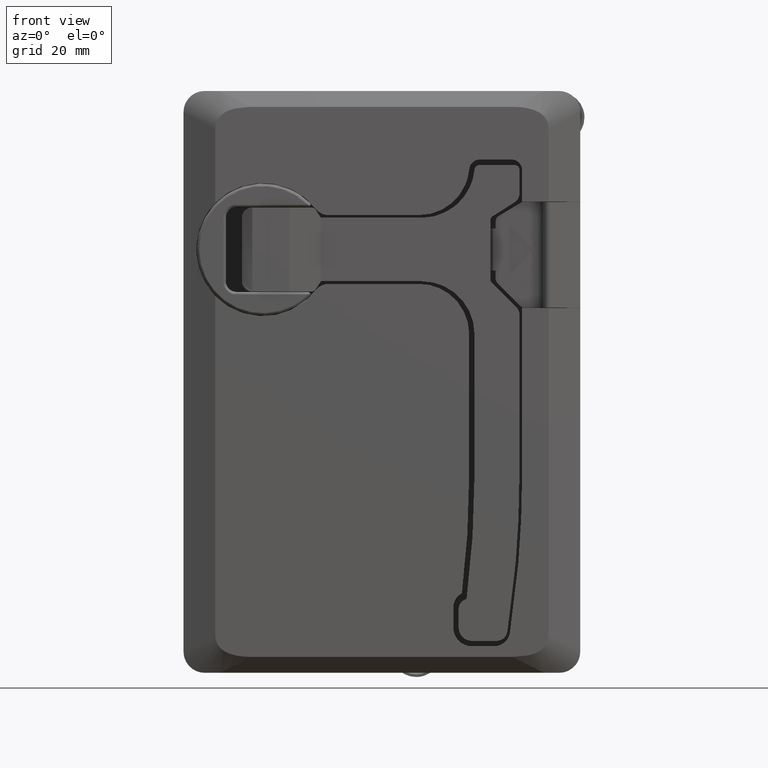
[diagram: clean part render]
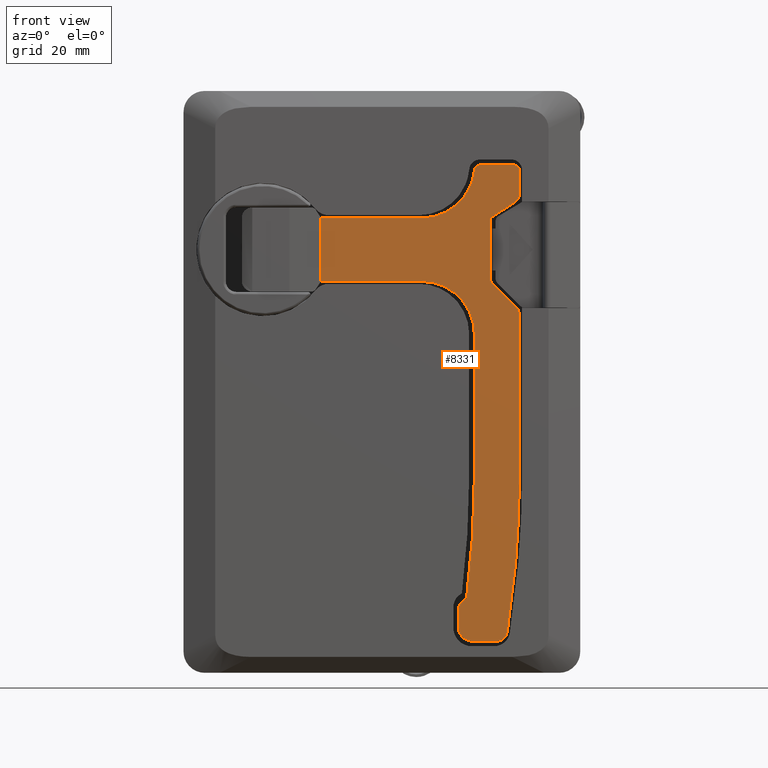
[diagram: same view with one face highlighted and labeled with its STEP entity id]
A machine part, front view. The second image highlights one B-rep face of the part: STEP entity #8331.
In plain terms, the highlighted face is a freeform B-spline surface patch.
Its self-contained STEP definition (entity closure, byte-faithful):
#7204=CARTESIAN_POINT('',(10.965373720073689,-26.800000000000001,-5.999868487807640));
#7205=VERTEX_POINT('',#7204);
#7213=CARTESIAN_POINT('',(10.965373714840711,-26.800000000000001,5.999868497117809));
#7214=VERTEX_POINT('',#7213);
#7215=CARTESIAN_POINT('',(10.965373720073689,-26.800000000000001,-5.999868487807640));
#7216=CARTESIAN_POINT('',(10.965373714840711,-26.800000000000001,5.999868497117809));
#7217=QUASI_UNIFORM_CURVE('',1,(#7215,#7216),.UNSPECIFIED.,.F.,.U.);
#7218=EDGE_CURVE('',#7205,#7214,#7217,.T.);
#7353=CARTESIAN_POINT('',(43.436406167468952,-26.800000000000001,6.277429972350809));
#7354=VERTEX_POINT('',#7353);
#7361=CARTESIAN_POINT('',(47.573445687218900,-26.800000000000001,8.910000000000000));
#7362=VERTEX_POINT('',#7361);
#7368=CARTESIAN_POINT('',(47.573445687218900,-26.800000000000001,8.910000000000000));
#7369=CARTESIAN_POINT('',(43.436406167468952,-26.800000000000001,6.277429972350809));
#7370=QUASI_UNIFORM_CURVE('',1,(#7368,#7369),.UNSPECIFIED.,.F.,.U.);
#7371=EDGE_CURVE('',#7362,#7354,#7370,.T.);
#7391=CARTESIAN_POINT('',(48.499445687218902,-26.800000000000001,10.598000000000001));
#7392=VERTEX_POINT('',#7391);
#7398=CARTESIAN_POINT('',(47.573445687218900,-26.800000000000001,8.910000000000000));
#7399=CARTESIAN_POINT('',(47.732377844695883,-26.800000000000029,9.011038441313067));
#7400=CARTESIAN_POINT('',(47.973093367197087,-26.799999999999979,9.217291413114293));
#7401=CARTESIAN_POINT('',(48.232160425211042,-26.800000000000001,9.574621711014068));
#7402=CARTESIAN_POINT('',(48.437668808919781,-26.800000000000001,10.012178943598469));
#7403=CARTESIAN_POINT('',(48.499730902072493,-26.800000000000050,10.367809887368130));
#7404=CARTESIAN_POINT('',(48.499445687218902,-26.800000000000001,10.598000000000001));
#7405=B_SPLINE_CURVE_WITH_KNOTS('',3,(#7398,#7399,#7400,#7401,#7402,#7403,#7404),.UNSPECIFIED.,.F.,.U.,(4,1,1,1,4),(0.000000042952321,0.564979257355559,0.941632497336676,1.318282900360760,2.008812958736724),.UNSPECIFIED.);
#7406=EDGE_CURVE('',#7362,#7392,#7405,.T.);
#7419=CARTESIAN_POINT('',(48.499445687218902,-26.800000000000001,15.0));
#7420=VERTEX_POINT('',#7419);
#7426=CARTESIAN_POINT('',(48.499445687218902,-26.800000000000001,15.0));
#7427=CARTESIAN_POINT('',(48.499445687218902,-26.800000000000001,10.598000000000001));
#7428=QUASI_UNIFORM_CURVE('',1,(#7426,#7427),.UNSPECIFIED.,.F.,.U.);
#7429=EDGE_CURVE('',#7420,#7392,#7428,.T.);
#7449=CARTESIAN_POINT('',(47.499445687218902,-26.800000000000001,16.0));
#7450=VERTEX_POINT('',#7449);
#7456=CARTESIAN_POINT('',(48.499445687218902,-26.800000000000001,15.0));
#7457=CARTESIAN_POINT('',(48.499489558630017,-26.800000000000018,15.106354320997029));
#7458=CARTESIAN_POINT('',(48.462600496014197,-26.800000000000001,15.335438634151149));
#7459=CARTESIAN_POINT('',(48.318209638793661,-26.800000000000011,15.597830014762160));
#7460=CARTESIAN_POINT('',(48.108880207313170,-26.800000000000090,15.807090875649971));
#7461=CARTESIAN_POINT('',(47.851181436236402,-26.799999999999731,15.957295349612890));
#7462=CARTESIAN_POINT('',(47.622179821844732,-26.800000000000129,16.000102069115290));
#7463=CARTESIAN_POINT('',(47.499445687218902,-26.800000000000001,16.0));
#7464=B_SPLINE_CURVE_WITH_KNOTS('',3,(#7456,#7457,#7458,#7459,#7460,#7461,#7462,#7463),.UNSPECIFIED.,.F.,.U.,(4,1,1,1,1,4),(0.000000316500850,0.319072849687816,0.687261406106283,0.883574654792372,1.202671760962569,1.570835744397910),.UNSPECIFIED.);
#7465=EDGE_CURVE('',#7420,#7450,#7464,.T.);
#7478=CARTESIAN_POINT('',(40.999445687218902,-26.800000000000001,16.0));
#7479=VERTEX_POINT('',#7478);
#7485=CARTESIAN_POINT('',(40.999445687218902,-26.800000000000001,16.0));
#7486=CARTESIAN_POINT('',(47.499445687218902,-26.800000000000001,16.0));
#7487=QUASI_UNIFORM_CURVE('',1,(#7485,#7486),.UNSPECIFIED.,.F.,.U.);
#7488=EDGE_CURVE('',#7479,#7450,#7487,.T.);
#7508=CARTESIAN_POINT('',(40.003811413995500,-26.800000000000001,15.090901939784350));
#7509=VERTEX_POINT('',#7508);
#7515=CARTESIAN_POINT('',(40.999445687218902,-26.800000000000001,16.0));
#7516=CARTESIAN_POINT('',(40.891564964375398,-26.800000000000001,16.000025246011688));
#7517=CARTESIAN_POINT('',(40.660399190246459,-26.800000000000011,15.962179321857450));
#7518=CARTESIAN_POINT('',(40.345460791623218,-26.799999999999979,15.786643994150580));
#7519=CARTESIAN_POINT('',(40.095397929531330,-26.800000000000029,15.484773215997000));
#7520=CARTESIAN_POINT('',(40.016260811641637,-26.800000000000040,15.229081054061650));
#7521=CARTESIAN_POINT('',(40.003811413995500,-26.800000000000001,15.090901939784350));
#7522=B_SPLINE_CURVE_WITH_KNOTS('',3,(#7515,#7516,#7517,#7518,#7519,#7520,#7521),.UNSPECIFIED.,.F.,.U.,(4,1,1,1,4),(0.000000167832963,0.323677993759414,0.693599270851050,1.063513667466645,1.479671515247317),.UNSPECIFIED.);
#7523=EDGE_CURVE('',#7479,#7509,#7522,.T.);
#7545=CARTESIAN_POINT('',(30.045445687218901,-26.800000000000001,6.0));
#7546=VERTEX_POINT('',#7545);
#7552=CARTESIAN_POINT('',(30.045445687218901,-26.800000000000001,6.0));
#7553=CARTESIAN_POINT('',(30.584932270362771,-26.800000000000001,5.999983565211604));
#7554=CARTESIAN_POINT('',(31.740975809580981,-26.800000000000001,6.093775932016242));
#7555=CARTESIAN_POINT('',(33.351525612500133,-26.800000000000001,6.512487654711298));
#7556=CARTESIAN_POINT('',(34.832193058267109,-26.800000000000029,7.177269713426016));
#7557=CARTESIAN_POINT('',(36.229160063548022,-26.800000000000072,8.077097378582858));
#7558=CARTESIAN_POINT('',(37.395430696032292,-26.800000000000050,9.154194123126482));
#7559=CARTESIAN_POINT('',(38.370112101268923,-26.799999999999891,10.401705399327611));
#7560=CARTESIAN_POINT('',(39.144336415849807,-26.800000000000072,11.739604148541780));
#7561=CARTESIAN_POINT('',(39.739257143256253,-26.800000000000090,13.335090297472471));
#7562=CARTESIAN_POINT('',(39.951302421593709,-26.799999999999759,14.515269493797110));
#7563=CARTESIAN_POINT('',(40.003811413995500,-26.800000000000001,15.090901939784350));
#7564=B_SPLINE_CURVE_WITH_KNOTS('',3,(#7552,#7553,#7554,#7555,#7556,#7557,#7558,#7559,#7560,#7561,#7562,#7563),.UNSPECIFIED.,.F.,.U.,(4,1,1,1,1,1,1,1,1,4),(0.000000084956174,1.618469351953996,3.468152886151042,4.971023064562264,6.473925240831878,8.439149809512614,9.710831910965634,11.213703075194729,13.063390707055911,14.797461801784200),.UNSPECIFIED.);
#7565=EDGE_CURVE('',#7546,#7509,#7564,.T.);
#7583=CARTESIAN_POINT('',(10.965373714840711,-26.800000000000001,5.999868497117809));
#7584=CARTESIAN_POINT('',(30.045445687218901,-26.800000000000001,6.0));
#7585=QUASI_UNIFORM_CURVE('',1,(#7583,#7584),.UNSPECIFIED.,.F.,.U.);
#7586=EDGE_CURVE('',#7214,#7546,#7585,.T.);
#7809=CARTESIAN_POINT('',(29.999445687218898,-26.800000000000001,-6.000000000000091));
#7810=VERTEX_POINT('',#7809);
#7816=CARTESIAN_POINT('',(29.999445687218898,-26.800000000000001,-6.000000000000091));
#7817=CARTESIAN_POINT('',(10.965373720073689,-26.800000000000001,-5.999868487807640));
#7818=QUASI_UNIFORM_CURVE('',1,(#7816,#7817),.UNSPECIFIED.,.F.,.U.);
#7819=EDGE_CURVE('',#7810,#7205,#7818,.T.);
#7841=CARTESIAN_POINT('',(39.999445687218902,-26.800000000000001,-16.0));
#7842=VERTEX_POINT('',#7841);
#7848=CARTESIAN_POINT('',(39.999445687218902,-26.800000000000001,-16.0));
#7849=CARTESIAN_POINT('',(39.999512515463891,-26.799999999999969,-15.345507040125931));
#7850=CARTESIAN_POINT('',(39.870513430284099,-26.800000000000029,-14.036526574600829));
#7851=CARTESIAN_POINT('',(39.357440547532462,-26.800000000000011,-12.345187794964991));
#7852=CARTESIAN_POINT('',(38.592641459543337,-26.800000000000001,-10.802334082464640));
#7853=CARTESIAN_POINT('',(37.709854339148343,-26.800000000000018,-9.565055828105596));
#7854=CARTESIAN_POINT('',(36.470914841968927,-26.799999999999990,-8.310790882998772));
#7855=CARTESIAN_POINT('',(35.165218392189587,-26.799999999999979,-7.379140172105198));
#7856=CARTESIAN_POINT('',(33.649998488316577,-26.800000000000018,-6.651181201039023));
#7857=CARTESIAN_POINT('',(32.003791724986783,-26.800000000000011,-6.140705438206801));
#7858=CARTESIAN_POINT('',(30.735760065080321,-26.799999999999962,-5.999872496510283));
#7859=CARTESIAN_POINT('',(29.999445687218898,-26.800000000000001,-6.000000000000091));
#7860=B_SPLINE_CURVE_WITH_KNOTS('',3,(#7848,#7849,#7850,#7851,#7852,#7853,#7854,#7855,#7856,#7857,#7858,#7859),.UNSPECIFIED.,.F.,.U.,(4,1,1,1,1,1,1,1,1,4),(0.000000081121673,1.963483693789987,3.927015823989693,5.276929981335757,7.117741919256629,8.467590751279538,10.553838791167079,11.903766333449720,13.499135483740160,15.708061828752930),.UNSPECIFIED.);
#7861=EDGE_CURVE('',#7842,#7810,#7860,.T.);
#7873=CARTESIAN_POINT('',(39.999445687218902,-26.800000000000001,-42.488999999999997));
#7874=VERTEX_POINT('',#7873);
#7880=CARTESIAN_POINT('',(39.999445687218902,-26.800000000000001,-42.488999999999997));
#7881=CARTESIAN_POINT('',(39.999445687218902,-26.800000000000001,-16.0));
#7882=QUASI_UNIFORM_CURVE('',1,(#7880,#7881),.UNSPECIFIED.,.F.,.U.);
#7883=EDGE_CURVE('',#7874,#7842,#7882,.T.);
#7904=CARTESIAN_POINT('',(38.499363815582853,-26.800000000000001,-66.063529467907998));
#7905=VERTEX_POINT('',#7904);
#7911=CARTESIAN_POINT('',(38.499363815582832,-26.800000000000001,-66.063529467908140));
#7912=CARTESIAN_POINT('',(39.999445687219101,-26.799999999999997,-54.323990938302572));
#7913=CARTESIAN_POINT('',(39.999445687218902,-26.800000000000001,-42.488999999999997));
#7921=(BOUNDED_CURVE()B_SPLINE_CURVE(2,(#7911,#7912,#7913),.UNSPECIFIED.,.F.,.U.)CURVE()GEOMETRIC_REPRESENTATION_ITEM()QUASI_UNIFORM_CURVE()RATIONAL_B_SPLINE_CURVE((1.0,0.997981645382943,1.0))REPRESENTATION_ITEM(''));
#7922=EDGE_CURVE('',#7905,#7874,#7921,.T.);
#7942=CARTESIAN_POINT('',(36.999445687218902,-26.800000000000001,-68.0));
#7943=VERTEX_POINT('',#7942);
#7949=CARTESIAN_POINT('',(38.499363815582853,-26.800000000000001,-66.063529467907998));
#7950=CARTESIAN_POINT('',(38.206675656421979,-26.800000000000001,-66.138624923226118));
#7951=CARTESIAN_POINT('',(37.794729230687373,-26.800000000000050,-66.353561376003270));
#7952=CARTESIAN_POINT('',(37.370180105358003,-26.799999999999951,-66.807977325186044));
#7953=CARTESIAN_POINT('',(37.083954621186983,-26.799999999999951,-67.313674236716338));
#7954=CARTESIAN_POINT('',(36.999176601148378,-26.799999999999979,-67.739082871520210));
#7955=CARTESIAN_POINT('',(36.999445687218902,-26.800000000000001,-68.0));
#7956=B_SPLINE_CURVE_WITH_KNOTS('',3,(#7949,#7950,#7951,#7952,#7953,#7954,#7955),.UNSPECIFIED.,.F.,.U.,(4,1,1,1,4),(0.000000183358273,0.906205162872697,1.359249272293292,1.853570372161170,2.636194167149164),.UNSPECIFIED.);
#7957=EDGE_CURVE('',#7905,#7943,#7956,.T.);
#7970=CARTESIAN_POINT('',(36.999445687218902,-26.800000000000001,-71.500000000000000));
#7971=VERTEX_POINT('',#7970);
#7977=CARTESIAN_POINT('',(36.999445687218902,-26.800000000000001,-71.500000000000000));
#7978=CARTESIAN_POINT('',(36.999445687218902,-26.800000000000001,-68.0));
#7979=QUASI_UNIFORM_CURVE('',1,(#7977,#7978),.UNSPECIFIED.,.F.,.U.);
#7980=EDGE_CURVE('',#7971,#7943,#7979,.T.);
#8000=CARTESIAN_POINT('',(39.499445687218902,-26.800000000000001,-74.0));
#8001=VERTEX_POINT('',#8000);
#8007=CARTESIAN_POINT('',(36.999445687218902,-26.800000000000001,-71.500000000000000));
#8008=CARTESIAN_POINT('',(36.999155804586771,-26.799999999999979,-71.806847780393952));
#8009=CARTESIAN_POINT('',(37.087188095976138,-26.800000000000001,-72.277049531481893));
#8010=CARTESIAN_POINT('',(37.373709619690793,-26.800000000000040,-72.846130546009846));
#8011=CARTESIAN_POINT('',(37.677161996889623,-26.799999999999919,-73.234973408467596));
#8012=CARTESIAN_POINT('',(38.081766047516922,-26.800000000000050,-73.584005480086176));
#8013=CARTESIAN_POINT('',(38.681485746544041,-26.799999999999990,-73.904635749720413));
#8014=CARTESIAN_POINT('',(39.192608501836787,-26.799999999999979,-74.000279301060075));
#8015=CARTESIAN_POINT('',(39.499445687218902,-26.800000000000001,-74.0));
#8016=B_SPLINE_CURVE_WITH_KNOTS('',3,(#8007,#8008,#8009,#8010,#8011,#8012,#8013,#8014,#8015),.UNSPECIFIED.,.F.,.U.,(4,1,1,1,1,1,4),(0.000000174684382,0.920408363299027,1.411319006959615,1.902206483304161,2.393066643528560,3.006681240643972,3.927089360845364),.UNSPECIFIED.);
#8017=EDGE_CURVE('',#7971,#8001,#8016,.T.);
#8030=CARTESIAN_POINT('',(44.223861660866802,-26.800000000000001,-74.0));
#8031=VERTEX_POINT('',#8030);
#8037=CARTESIAN_POINT('',(44.223861660866802,-26.800000000000001,-74.0));
#8038=CARTESIAN_POINT('',(39.499445687218902,-26.800000000000001,-74.0));
#8039=QUASI_UNIFORM_CURVE('',1,(#8037,#8038),.UNSPECIFIED.,.F.,.U.);
#8040=EDGE_CURVE('',#8031,#8001,#8039,.T.);
#8060=CARTESIAN_POINT('',(46.200219842411187,-26.800000000000001,-72.306607792207799));
#8061=VERTEX_POINT('',#8060);
#8067=CARTESIAN_POINT('',(44.223861660866802,-26.800000000000001,-74.0));
#8068=CARTESIAN_POINT('',(44.400972866960281,-26.799999999999962,-74.000052743850318));
#8069=CARTESIAN_POINT('',(44.755175636142361,-26.800000000000072,-73.952642378621533));
#8070=CARTESIAN_POINT('',(45.262961816859267,-26.799999999999962,-73.738941582359999));
#8071=CARTESIAN_POINT('',(45.693633693524127,-26.799999999999990,-73.394001093817053));
#8072=CARTESIAN_POINT('',(46.039146742516678,-26.800000000000111,-72.908867624976921));
#8073=CARTESIAN_POINT('',(46.166392944317749,-26.799999999999770,-72.525405399723994));
#8074=CARTESIAN_POINT('',(46.200219842411187,-26.800000000000001,-72.306607792207799));
#8075=B_SPLINE_CURVE_WITH_KNOTS('',3,(#8067,#8068,#8069,#8070,#8071,#8072,#8073,#8074),.UNSPECIFIED.,.F.,.U.,(4,1,1,1,1,4),(0.000000200391131,0.531334072308610,1.062709269841856,1.638275822370673,2.169652400767940,2.833828852765348),.UNSPECIFIED.);
#8076=EDGE_CURVE('',#8031,#8061,#8075,.T.);
#8097=CARTESIAN_POINT('',(48.499445687218902,-26.800000000000001,-42.488999999999997));
#8098=VERTEX_POINT('',#8097);
#8104=CARTESIAN_POINT('',(46.200219842411023,-26.800000000000001,-72.306607792207856));
#8105=CARTESIAN_POINT('',(48.499445687218703,-26.800000000000001,-57.486450167164165));
#8106=CARTESIAN_POINT('',(48.499445687218902,-26.800000000000001,-42.488999999999997));
#8114=(BOUNDED_CURVE()B_SPLINE_CURVE(2,(#8104,#8105,#8106),.UNSPECIFIED.,.F.,.U.)CURVE()GEOMETRIC_REPRESENTATION_ITEM()QUASI_UNIFORM_CURVE()RATIONAL_B_SPLINE_CURVE((1.0,0.997040241832448,1.0))REPRESENTATION_ITEM(''));
#8115=EDGE_CURVE('',#8061,#8098,#8114,.T.);
#8128=CARTESIAN_POINT('',(48.499445687218802,-26.800000000000001,-12.329000000000001));
#8129=VERTEX_POINT('',#8128);
#8135=CARTESIAN_POINT('',(48.499445687218802,-26.800000000000001,-12.329000000000001));
#8136=CARTESIAN_POINT('',(48.499445687218902,-26.800000000000001,-42.488999999999997));
#8137=QUASI_UNIFORM_CURVE('',1,(#8135,#8136),.UNSPECIFIED.,.F.,.U.);
#8138=EDGE_CURVE('',#8129,#8098,#8137,.T.);
#8158=CARTESIAN_POINT('',(47.913445687218797,-26.800000000000001,-10.914000000000000));
#8159=VERTEX_POINT('',#8158);
#8165=CARTESIAN_POINT('',(48.499445687218802,-26.800000000000001,-12.329000000000001));
#8166=CARTESIAN_POINT('',(48.499490022840853,-26.800000000000001,-12.165288772211310));
#8167=CARTESIAN_POINT('',(48.455131855014791,-26.800000000000011,-11.805100342623779));
#8168=CARTESIAN_POINT('',(48.252490963520160,-26.800000000000072,-11.315843252089969));
#8169=CARTESIAN_POINT('',(48.029228484735057,-26.800000000000029,-11.029741648571809));
#8170=CARTESIAN_POINT('',(47.913445687218797,-26.800000000000001,-10.914000000000000));
#8171=B_SPLINE_CURVE_WITH_KNOTS('',3,(#8165,#8166,#8167,#8168,#8169,#8170),.UNSPECIFIED.,.F.,.U.,(4,1,1,4),(0.000000067502832,0.491156480844465,1.080522893881582,1.571679307223356),.UNSPECIFIED.);
#8172=EDGE_CURVE('',#8129,#8159,#8171,.T.);
#8185=CARTESIAN_POINT('',(43.304733892946700,-26.800000000000001,-6.305288205727869));
#8186=VERTEX_POINT('',#8185);
#8192=CARTESIAN_POINT('',(43.304733892946700,-26.800000000000001,-6.305288205727869));
#8193=CARTESIAN_POINT('',(47.913445687218797,-26.800000000000001,-10.914000000000000));
#8194=QUASI_UNIFORM_CURVE('',1,(#8192,#8193),.UNSPECIFIED.,.F.,.U.);
#8195=EDGE_CURVE('',#8186,#8159,#8194,.T.);
#8216=CARTESIAN_POINT('',(42.999445687218902,-26.800000000000001,-5.586000000000071));
#8217=VERTEX_POINT('',#8216);
#8223=CARTESIAN_POINT('',(42.999445687218902,-26.800000000000001,-5.586000000000071));
#8224=CARTESIAN_POINT('',(42.999427934924178,-26.799999999999979,-5.686337870623607));
#8225=CARTESIAN_POINT('',(43.039958084912378,-26.800000000000090,-5.953988619657744));
#8226=CARTESIAN_POINT('',(43.184129637601693,-26.799999999999919,-6.189298295492814));
#8227=CARTESIAN_POINT('',(43.304733892946700,-26.800000000000001,-6.305288205727869));
#8228=B_SPLINE_CURVE_WITH_KNOTS('',3,(#8223,#8224,#8225,#8226,#8227),.UNSPECIFIED.,.F.,.U.,(4,1,4),(0.000000078589337,0.301058255974843,0.802798231263382),.UNSPECIFIED.);
#8229=EDGE_CURVE('',#8217,#8186,#8228,.T.);
#8248=CARTESIAN_POINT('',(42.999445687218902,-26.800000000000001,5.451000000000001));
#8249=VERTEX_POINT('',#8248);
#8257=CARTESIAN_POINT('',(43.436406167468952,-26.800000000000001,6.277429972350809));
#8258=CARTESIAN_POINT('',(43.310643447934360,-26.799999999999979,6.192006252913007));
#8259=CARTESIAN_POINT('',(43.085444664319219,-26.800000000000018,5.947102908419621));
#8260=CARTESIAN_POINT('',(42.999017638405277,-26.799999999999979,5.623326585931332));
#8261=CARTESIAN_POINT('',(42.999445687218902,-26.800000000000001,5.451000000000001));
#8262=B_SPLINE_CURVE_WITH_KNOTS('',3,(#8257,#8258,#8259,#8260,#8261),.UNSPECIFIED.,.F.,.U.,(4,1,4),(0.000000127205344,0.456010728101503,0.972774661863706),.UNSPECIFIED.);
#8263=EDGE_CURVE('',#7354,#8249,#8262,.T.);
#8295=CARTESIAN_POINT('',(9.090546892568735,-26.800000000000001,20.495499825562529));
#8296=CARTESIAN_POINT('',(50.374273516233153,-26.800000000000001,20.495499825562529));
#8297=CARTESIAN_POINT('',(9.090546892568735,-26.800000000000001,-78.495502239550660));
#8298=CARTESIAN_POINT('',(50.374273516233153,-26.800000000000001,-78.495502239550660));
#8299=B_SPLINE_SURFACE_WITH_KNOTS('',1,1,((#8295,#8297),(#8296,#8298)),.UNSPECIFIED.,.F.,.F.,.U.,(2,2),(2,2),(0.0,41.283726623664421),(0.0,98.991002065113193),.UNSPECIFIED.);
#8300=ORIENTED_EDGE('',*,*,#7819,.F.);
#8301=ORIENTED_EDGE('',*,*,#7861,.F.);
#8302=ORIENTED_EDGE('',*,*,#7883,.F.);
#8303=ORIENTED_EDGE('',*,*,#7922,.F.);
#8304=ORIENTED_EDGE('',*,*,#7957,.T.);
#8305=ORIENTED_EDGE('',*,*,#7980,.F.);
#8306=ORIENTED_EDGE('',*,*,#8017,.T.);
#8307=ORIENTED_EDGE('',*,*,#8040,.F.);
#8308=ORIENTED_EDGE('',*,*,#8076,.T.);
#8309=ORIENTED_EDGE('',*,*,#8115,.T.);
#8310=ORIENTED_EDGE('',*,*,#8138,.F.);
#8311=ORIENTED_EDGE('',*,*,#8172,.T.);
#8312=ORIENTED_EDGE('',*,*,#8195,.F.);
#8313=ORIENTED_EDGE('',*,*,#8229,.F.);
#8314=CARTESIAN_POINT('',(42.999445687218902,-26.800000000000001,5.451000000000001));
#8315=CARTESIAN_POINT('',(42.999445687218902,-26.800000000000001,-5.586000000000071));
#8316=QUASI_UNIFORM_CURVE('',1,(#8314,#8315),.UNSPECIFIED.,.F.,.U.);
#8317=EDGE_CURVE('',#8249,#8217,#8316,.T.);
#8318=ORIENTED_EDGE('',*,*,#8317,.F.);
#8319=ORIENTED_EDGE('',*,*,#8263,.F.);
#8320=ORIENTED_EDGE('',*,*,#7371,.F.);
#8321=ORIENTED_EDGE('',*,*,#7406,.T.);
#8322=ORIENTED_EDGE('',*,*,#7429,.F.);
#8323=ORIENTED_EDGE('',*,*,#7465,.T.);
#8324=ORIENTED_EDGE('',*,*,#7488,.F.);
#8325=ORIENTED_EDGE('',*,*,#7523,.T.);
#8326=ORIENTED_EDGE('',*,*,#7565,.F.);
#8327=ORIENTED_EDGE('',*,*,#7586,.F.);
#8328=ORIENTED_EDGE('',*,*,#7218,.F.);
#8329=EDGE_LOOP('',(#8300,#8301,#8302,#8303,#8304,#8305,#8306,#8307,#8308,#8309,#8310,#8311,#8312,#8313,#8318,#8319,#8320,#8321,#8322,#8323,#8324,#8325,#8326,#8327,#8328));
#8330=FACE_OUTER_BOUND('',#8329,.T.);
#8331=ADVANCED_FACE('',(#8330),#8299,.F.);